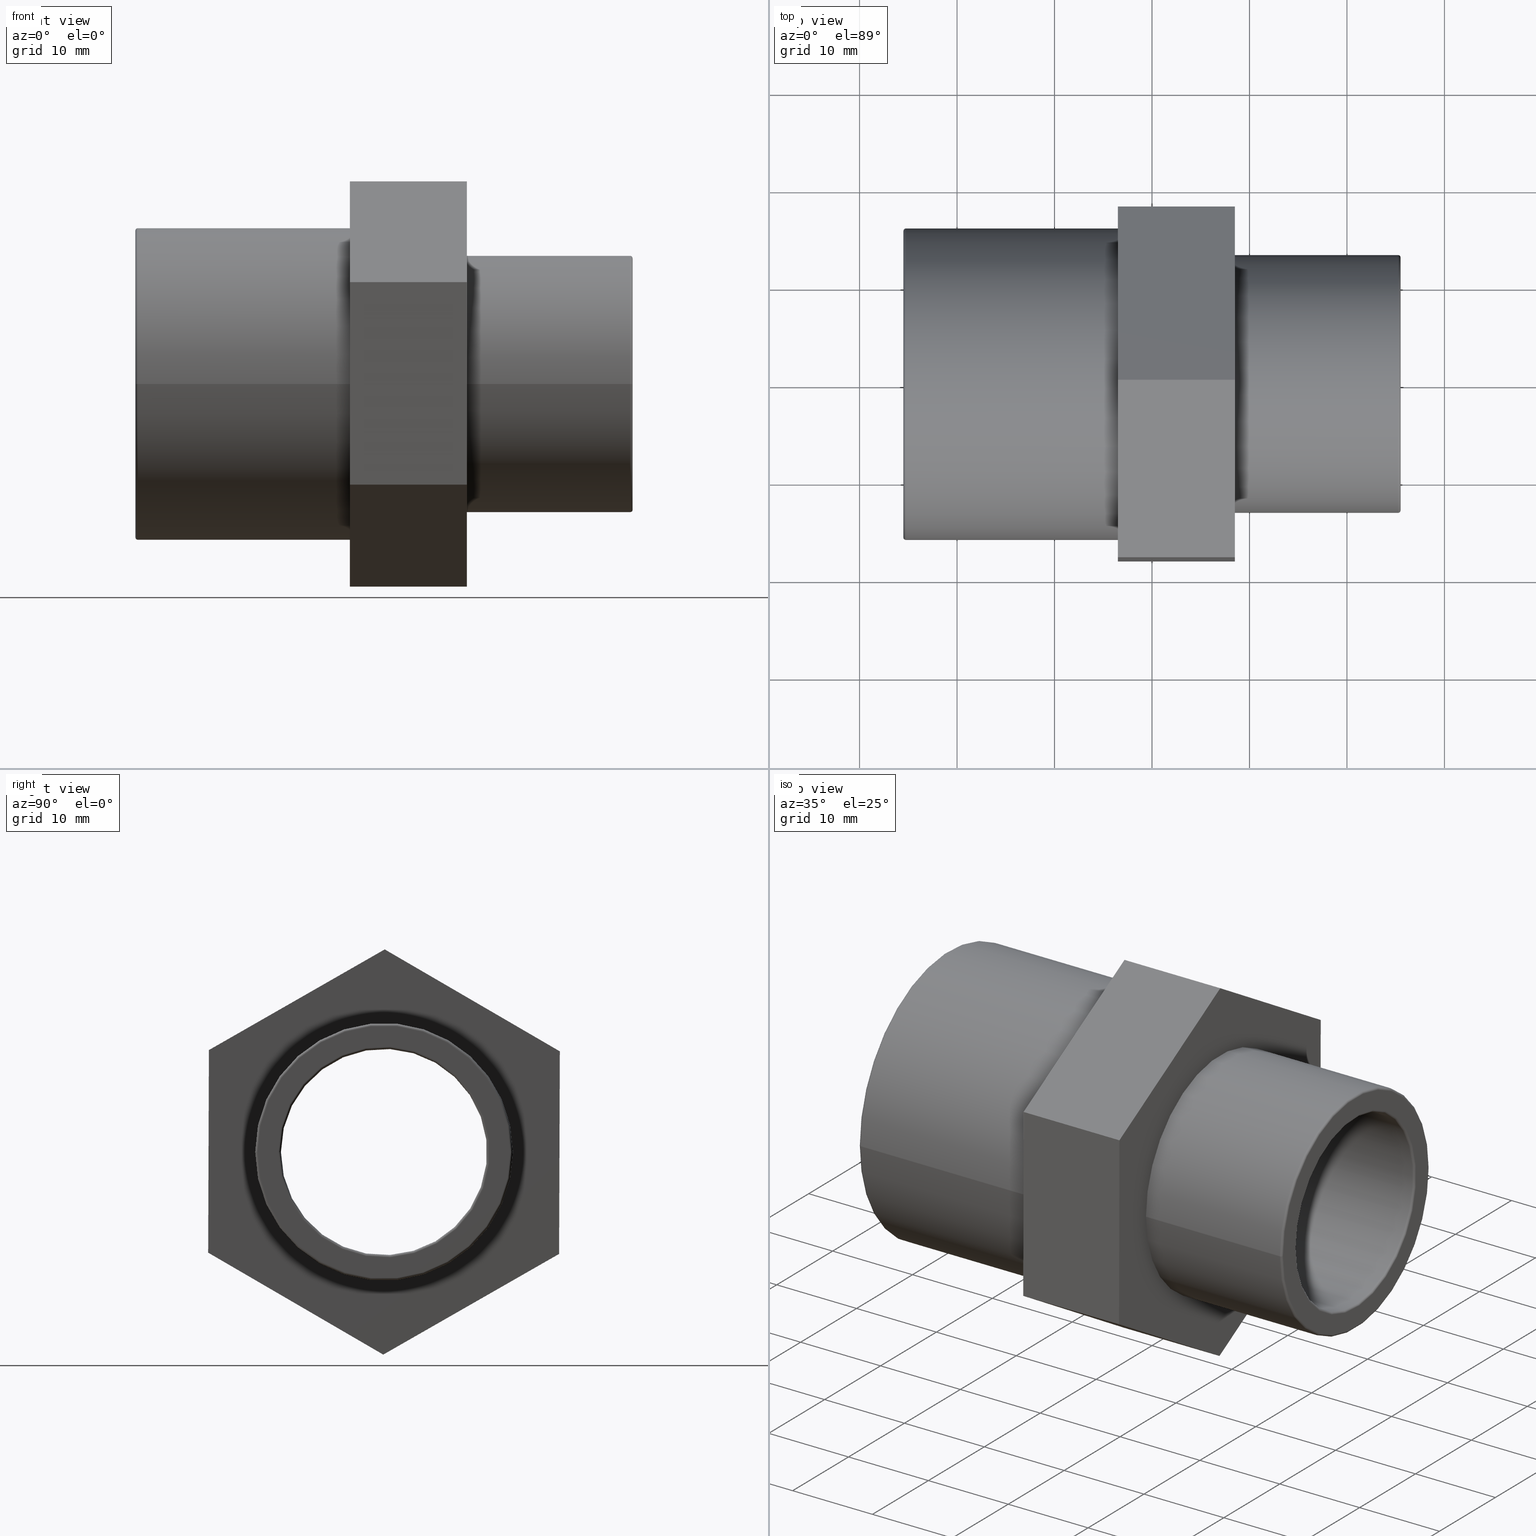
[diagram: canonical four-view strip — front | top / right | iso, engineering-drawing reading convention]
A machine part, canonical four-view strip (front | top / right | iso — engineering-drawing reading convention). The complete STEP part file that produces these views, byte-faithful:
ISO-10303-21;
HEADER;
/* Generated by software containing ST-Developer
 * from STEP Tools, Inc. (www.steptools.com) 
 */

FILE_DESCRIPTION(
/* description */ ('PLASSON SOCKET NIPPLE THR-CE 32(25)-3/4"'),
/* implementation_level */ '2;1');

FILE_NAME(
/* name */ 
'C:\\Dropbox\\KIMPROJECTS-Inventor\\99-16-3568-Processing\\PVC Catalog
 2017\\052102\\052102025007.ipt.stp',
/* time_stamp */ '2017-12-07T16:01:51+02:00',
/* author */ ('KIM'),
/* organization */ (''),
/* preprocessor_version */ 'ST-DEVELOPER v15.6',
/* originating_system */ 'Autodesk Inventor 2015',
/* authorisation */ '');

FILE_SCHEMA (('AUTOMOTIVE_DESIGN { 1 0 10303 214 3 1 1 }'));
ENDSEC;

DATA;
#10=MECHANICAL_DESIGN_GEOMETRIC_PRESENTATION_REPRESENTATION('',(#13),#511);
#11=SHAPE_REPRESENTATION_RELATIONSHIP('SRR','None',#520,#12);
#12=ADVANCED_BREP_SHAPE_REPRESENTATION($,(#14),#510);
#13=STYLED_ITEM('',(#529),#14);
#14=MANIFOLD_SOLID_BREP('Solid1',#301);
#15=CYLINDRICAL_SURFACE('',#314,10.5764);
#16=CYLINDRICAL_SURFACE('',#318,13.2205);
#17=CYLINDRICAL_SURFACE('',#325,12.5);
#18=CYLINDRICAL_SURFACE('',#329,16.);
#19=CYLINDRICAL_SURFACE('',#333,11.875);
#20=FACE_BOUND('',#81,.T.);
#21=FACE_BOUND('',#83,.T.);
#22=FACE_BOUND('',#85,.T.);
#23=FACE_BOUND('',#87,.T.);
#24=FACE_BOUND('',#89,.T.);
#25=FACE_BOUND('',#91,.T.);
#26=FACE_BOUND('',#93,.T.);
#27=FACE_BOUND('',#95,.T.);
#28=FACE_BOUND('',#97,.T.);
#29=FACE_BOUND('',#99,.T.);
#30=FACE_BOUND('',#101,.T.);
#31=FACE_BOUND('',#103,.T.);
#32=FACE_BOUND('',#105,.T.);
#33=FACE_BOUND('',#107,.T.);
#34=FACE_BOUND('',#109,.T.);
#35=CIRCLE('',#310,10.5764);
#36=CIRCLE('',#311,10.8264);
#37=CIRCLE('',#313,12.9705);
#38=CIRCLE('',#315,10.5764);
#39=CIRCLE('',#317,13.2205);
#40=CIRCLE('',#319,13.2205);
#41=CIRCLE('',#321,12.75);
#42=CIRCLE('',#322,12.5);
#43=CIRCLE('',#324,15.75);
#44=CIRCLE('',#326,12.5);
#45=CIRCLE('',#328,16.);
#46=CIRCLE('',#330,16.);
#47=CIRCLE('',#332,11.875);
#48=CIRCLE('',#334,11.875);
#49=TOROIDAL_SURFACE('',#309,10.8264,0.25);
#50=TOROIDAL_SURFACE('',#316,12.9705,0.25);
#51=TOROIDAL_SURFACE('',#320,12.75,0.25);
#52=TOROIDAL_SURFACE('',#327,15.75,0.25);
#53=FACE_OUTER_BOUND('',#74,.T.);
#54=FACE_OUTER_BOUND('',#75,.T.);
#55=FACE_OUTER_BOUND('',#76,.T.);
#56=FACE_OUTER_BOUND('',#77,.T.);
#57=FACE_OUTER_BOUND('',#78,.T.);
#58=FACE_OUTER_BOUND('',#79,.T.);
#59=FACE_OUTER_BOUND('',#80,.T.);
#60=FACE_OUTER_BOUND('',#82,.T.);
#61=FACE_OUTER_BOUND('',#84,.T.);
#62=FACE_OUTER_BOUND('',#86,.T.);
#63=FACE_OUTER_BOUND('',#88,.T.);
#64=FACE_OUTER_BOUND('',#90,.T.);
#65=FACE_OUTER_BOUND('',#92,.T.);
#66=FACE_OUTER_BOUND('',#94,.T.);
#67=FACE_OUTER_BOUND('',#96,.T.);
#68=FACE_OUTER_BOUND('',#98,.T.);
#69=FACE_OUTER_BOUND('',#100,.T.);
#70=FACE_OUTER_BOUND('',#102,.T.);
#71=FACE_OUTER_BOUND('',#104,.T.);
#72=FACE_OUTER_BOUND('',#106,.T.);
#73=FACE_OUTER_BOUND('',#108,.T.);
#74=EDGE_LOOP('',(#204,#205,#206,#207));
#75=EDGE_LOOP('',(#208,#209,#210,#211));
#76=EDGE_LOOP('',(#212,#213,#214,#215));
#77=EDGE_LOOP('',(#216,#217,#218,#219));
#78=EDGE_LOOP('',(#220,#221,#222,#223));
#79=EDGE_LOOP('',(#224,#225,#226,#227));
#80=EDGE_LOOP('',(#228));
#81=EDGE_LOOP('',(#229));
#82=EDGE_LOOP('',(#230));
#83=EDGE_LOOP('',(#231));
#84=EDGE_LOOP('',(#232));
#85=EDGE_LOOP('',(#233));
#86=EDGE_LOOP('',(#234));
#87=EDGE_LOOP('',(#235));
#88=EDGE_LOOP('',(#236));
#89=EDGE_LOOP('',(#237));
#90=EDGE_LOOP('',(#238));
#91=EDGE_LOOP('',(#239));
#92=EDGE_LOOP('',(#240));
#93=EDGE_LOOP('',(#241));
#94=EDGE_LOOP('',(#242));
#95=EDGE_LOOP('',(#243));
#96=EDGE_LOOP('',(#244));
#97=EDGE_LOOP('',(#245));
#98=EDGE_LOOP('',(#246));
#99=EDGE_LOOP('',(#247));
#100=EDGE_LOOP('',(#248));
#101=EDGE_LOOP('',(#249));
#102=EDGE_LOOP('',(#250));
#103=EDGE_LOOP('',(#251));
#104=EDGE_LOOP('',(#252));
#105=EDGE_LOOP('',(#253));
#106=EDGE_LOOP('',(#254,#255,#256,#257,#258,#259));
#107=EDGE_LOOP('',(#260));
#108=EDGE_LOOP('',(#261,#262,#263,#264,#265,#266));
#109=EDGE_LOOP('',(#267));
#110=LINE('',#432,#128);
#111=LINE('',#434,#129);
#112=LINE('',#436,#130);
#113=LINE('',#437,#131);
#114=LINE('',#440,#132);
#115=LINE('',#442,#133);
#116=LINE('',#443,#134);
#117=LINE('',#446,#135);
#118=LINE('',#448,#136);
#119=LINE('',#449,#137);
#120=LINE('',#453,#138);
#121=LINE('',#455,#139);
#122=LINE('',#457,#140);
#123=LINE('',#458,#141);
#124=LINE('',#460,#142);
#125=LINE('',#461,#143);
#126=LINE('',#463,#144);
#127=LINE('',#464,#145);
#128=VECTOR('',#342,20.7846096908266);
#129=VECTOR('',#343,12.);
#130=VECTOR('',#344,20.7846096908266);
#131=VECTOR('',#345,12.);
#132=VECTOR('',#348,20.7846096908266);
#133=VECTOR('',#349,12.);
#134=VECTOR('',#350,20.7846096908266);
#135=VECTOR('',#353,20.7846096908266);
#136=VECTOR('',#354,12.);
#137=VECTOR('',#355,20.7846096908266);
#138=VECTOR('',#358,20.7846096908266);
#139=VECTOR('',#359,12.);
#140=VECTOR('',#360,20.7846096908266);
#141=VECTOR('',#361,12.);
#142=VECTOR('',#364,20.7846096908266);
#143=VECTOR('',#365,20.7846096908266);
#144=VECTOR('',#368,20.7846096908265);
#145=VECTOR('',#369,20.7846096908265);
#146=VERTEX_POINT('',#430);
#147=VERTEX_POINT('',#431);
#148=VERTEX_POINT('',#433);
#149=VERTEX_POINT('',#435);
#150=VERTEX_POINT('',#439);
#151=VERTEX_POINT('',#441);
#152=VERTEX_POINT('',#445);
#153=VERTEX_POINT('',#447);
#154=VERTEX_POINT('',#451);
#155=VERTEX_POINT('',#452);
#156=VERTEX_POINT('',#454);
#157=VERTEX_POINT('',#456);
#158=VERTEX_POINT('',#466);
#159=VERTEX_POINT('',#468);
#160=VERTEX_POINT('',#471);
#161=VERTEX_POINT('',#474);
#162=VERTEX_POINT('',#477);
#163=VERTEX_POINT('',#480);
#164=VERTEX_POINT('',#483);
#165=VERTEX_POINT('',#485);
#166=VERTEX_POINT('',#488);
#167=VERTEX_POINT('',#491);
#168=VERTEX_POINT('',#494);
#169=VERTEX_POINT('',#497);
#170=VERTEX_POINT('',#500);
#171=VERTEX_POINT('',#503);
#172=EDGE_CURVE('',#146,#147,#110,.T.);
#173=EDGE_CURVE('',#148,#147,#111,.T.);
#174=EDGE_CURVE('',#148,#149,#112,.T.);
#175=EDGE_CURVE('',#149,#146,#113,.T.);
#176=EDGE_CURVE('',#147,#150,#114,.T.);
#177=EDGE_CURVE('',#151,#150,#115,.T.);
#178=EDGE_CURVE('',#151,#148,#116,.T.);
#179=EDGE_CURVE('',#150,#152,#117,.T.);
#180=EDGE_CURVE('',#153,#152,#118,.T.);
#181=EDGE_CURVE('',#153,#151,#119,.T.);
#182=EDGE_CURVE('',#154,#155,#120,.T.);
#183=EDGE_CURVE('',#156,#155,#121,.T.);
#184=EDGE_CURVE('',#156,#157,#122,.T.);
#185=EDGE_CURVE('',#157,#154,#123,.T.);
#186=EDGE_CURVE('',#155,#146,#124,.T.);
#187=EDGE_CURVE('',#149,#156,#125,.T.);
#188=EDGE_CURVE('',#152,#154,#126,.T.);
#189=EDGE_CURVE('',#157,#153,#127,.T.);
#190=EDGE_CURVE('',#158,#158,#35,.T.);
#191=EDGE_CURVE('',#159,#159,#36,.T.);
#192=EDGE_CURVE('',#160,#160,#37,.T.);
#193=EDGE_CURVE('',#161,#161,#38,.T.);
#194=EDGE_CURVE('',#162,#162,#39,.T.);
#195=EDGE_CURVE('',#163,#163,#40,.T.);
#196=EDGE_CURVE('',#164,#164,#41,.T.);
#197=EDGE_CURVE('',#165,#165,#42,.T.);
#198=EDGE_CURVE('',#166,#166,#43,.T.);
#199=EDGE_CURVE('',#167,#167,#44,.T.);
#200=EDGE_CURVE('',#168,#168,#45,.T.);
#201=EDGE_CURVE('',#169,#169,#46,.T.);
#202=EDGE_CURVE('',#170,#170,#47,.T.);
#203=EDGE_CURVE('',#171,#171,#48,.T.);
#204=ORIENTED_EDGE('',*,*,#172,.T.);
#205=ORIENTED_EDGE('',*,*,#173,.F.);
#206=ORIENTED_EDGE('',*,*,#174,.T.);
#207=ORIENTED_EDGE('',*,*,#175,.T.);
#208=ORIENTED_EDGE('',*,*,#176,.T.);
#209=ORIENTED_EDGE('',*,*,#177,.F.);
#210=ORIENTED_EDGE('',*,*,#178,.T.);
#211=ORIENTED_EDGE('',*,*,#173,.T.);
#212=ORIENTED_EDGE('',*,*,#179,.T.);
#213=ORIENTED_EDGE('',*,*,#180,.F.);
#214=ORIENTED_EDGE('',*,*,#181,.T.);
#215=ORIENTED_EDGE('',*,*,#177,.T.);
#216=ORIENTED_EDGE('',*,*,#182,.T.);
#217=ORIENTED_EDGE('',*,*,#183,.F.);
#218=ORIENTED_EDGE('',*,*,#184,.T.);
#219=ORIENTED_EDGE('',*,*,#185,.T.);
#220=ORIENTED_EDGE('',*,*,#186,.T.);
#221=ORIENTED_EDGE('',*,*,#175,.F.);
#222=ORIENTED_EDGE('',*,*,#187,.T.);
#223=ORIENTED_EDGE('',*,*,#183,.T.);
#224=ORIENTED_EDGE('',*,*,#188,.T.);
#225=ORIENTED_EDGE('',*,*,#185,.F.);
#226=ORIENTED_EDGE('',*,*,#189,.T.);
#227=ORIENTED_EDGE('',*,*,#180,.T.);
#228=ORIENTED_EDGE('',*,*,#190,.T.);
#229=ORIENTED_EDGE('',*,*,#191,.T.);
#230=ORIENTED_EDGE('',*,*,#192,.F.);
#231=ORIENTED_EDGE('',*,*,#191,.F.);
#232=ORIENTED_EDGE('',*,*,#193,.T.);
#233=ORIENTED_EDGE('',*,*,#190,.F.);
#234=ORIENTED_EDGE('',*,*,#192,.T.);
#235=ORIENTED_EDGE('',*,*,#194,.T.);
#236=ORIENTED_EDGE('',*,*,#195,.F.);
#237=ORIENTED_EDGE('',*,*,#194,.F.);
#238=ORIENTED_EDGE('',*,*,#196,.T.);
#239=ORIENTED_EDGE('',*,*,#197,.T.);
#240=ORIENTED_EDGE('',*,*,#198,.F.);
#241=ORIENTED_EDGE('',*,*,#196,.F.);
#242=ORIENTED_EDGE('',*,*,#199,.F.);
#243=ORIENTED_EDGE('',*,*,#197,.F.);
#244=ORIENTED_EDGE('',*,*,#200,.T.);
#245=ORIENTED_EDGE('',*,*,#198,.T.);
#246=ORIENTED_EDGE('',*,*,#201,.T.);
#247=ORIENTED_EDGE('',*,*,#200,.F.);
#248=ORIENTED_EDGE('',*,*,#199,.T.);
#249=ORIENTED_EDGE('',*,*,#202,.F.);
#250=ORIENTED_EDGE('',*,*,#203,.F.);
#251=ORIENTED_EDGE('',*,*,#202,.T.);
#252=ORIENTED_EDGE('',*,*,#203,.T.);
#253=ORIENTED_EDGE('',*,*,#193,.F.);
#254=ORIENTED_EDGE('',*,*,#186,.F.);
#255=ORIENTED_EDGE('',*,*,#182,.F.);
#256=ORIENTED_EDGE('',*,*,#188,.F.);
#257=ORIENTED_EDGE('',*,*,#179,.F.);
#258=ORIENTED_EDGE('',*,*,#176,.F.);
#259=ORIENTED_EDGE('',*,*,#172,.F.);
#260=ORIENTED_EDGE('',*,*,#195,.T.);
#261=ORIENTED_EDGE('',*,*,#174,.F.);
#262=ORIENTED_EDGE('',*,*,#178,.F.);
#263=ORIENTED_EDGE('',*,*,#181,.F.);
#264=ORIENTED_EDGE('',*,*,#189,.F.);
#265=ORIENTED_EDGE('',*,*,#184,.F.);
#266=ORIENTED_EDGE('',*,*,#187,.F.);
#267=ORIENTED_EDGE('',*,*,#201,.F.);
#268=PLANE('',#303);
#269=PLANE('',#304);
#270=PLANE('',#305);
#271=PLANE('',#306);
#272=PLANE('',#307);
#273=PLANE('',#308);
#274=PLANE('',#312);
#275=PLANE('',#323);
#276=PLANE('',#331);
#277=PLANE('',#335);
#278=PLANE('',#336);
#279=PLANE('',#337);
#280=ADVANCED_FACE('',(#53),#268,.T.);
#281=ADVANCED_FACE('',(#54),#269,.T.);
#282=ADVANCED_FACE('',(#55),#270,.T.);
#283=ADVANCED_FACE('',(#56),#271,.T.);
#284=ADVANCED_FACE('',(#57),#272,.T.);
#285=ADVANCED_FACE('',(#58),#273,.T.);
#286=ADVANCED_FACE('',(#59,#20),#49,.T.);
#287=ADVANCED_FACE('',(#60,#21),#274,.T.);
#288=ADVANCED_FACE('',(#61,#22),#15,.F.);
#289=ADVANCED_FACE('',(#62,#23),#50,.T.);
#290=ADVANCED_FACE('',(#63,#24),#16,.T.);
#291=ADVANCED_FACE('',(#64,#25),#51,.T.);
#292=ADVANCED_FACE('',(#65,#26),#275,.T.);
#293=ADVANCED_FACE('',(#66,#27),#17,.F.);
#294=ADVANCED_FACE('',(#67,#28),#52,.T.);
#295=ADVANCED_FACE('',(#68,#29),#18,.T.);
#296=ADVANCED_FACE('',(#69,#30),#276,.T.);
#297=ADVANCED_FACE('',(#70,#31),#19,.F.);
#298=ADVANCED_FACE('',(#71,#32),#277,.T.);
#299=ADVANCED_FACE('',(#72,#33),#278,.T.);
#300=ADVANCED_FACE('',(#73,#34),#279,.T.);
#301=CLOSED_SHELL('',(#280,#281,#282,#283,#284,#285,#286,#287,#288,#289,
#290,#291,#292,#293,#294,#295,#296,#297,#298,#299,#300));
#302=AXIS2_PLACEMENT_3D('placement',#428,#338,#339);
#303=AXIS2_PLACEMENT_3D('',#429,#340,#341);
#304=AXIS2_PLACEMENT_3D('',#438,#346,#347);
#305=AXIS2_PLACEMENT_3D('',#444,#351,#352);
#306=AXIS2_PLACEMENT_3D('',#450,#356,#357);
#307=AXIS2_PLACEMENT_3D('',#459,#362,#363);
#308=AXIS2_PLACEMENT_3D('',#462,#366,#367);
#309=AXIS2_PLACEMENT_3D('',#465,#370,#371);
#310=AXIS2_PLACEMENT_3D('',#467,#372,#373);
#311=AXIS2_PLACEMENT_3D('',#469,#374,#375);
#312=AXIS2_PLACEMENT_3D('',#470,#376,#377);
#313=AXIS2_PLACEMENT_3D('',#472,#378,#379);
#314=AXIS2_PLACEMENT_3D('',#473,#380,#381);
#315=AXIS2_PLACEMENT_3D('',#475,#382,#383);
#316=AXIS2_PLACEMENT_3D('',#476,#384,#385);
#317=AXIS2_PLACEMENT_3D('',#478,#386,#387);
#318=AXIS2_PLACEMENT_3D('',#479,#388,#389);
#319=AXIS2_PLACEMENT_3D('',#481,#390,#391);
#320=AXIS2_PLACEMENT_3D('',#482,#392,#393);
#321=AXIS2_PLACEMENT_3D('',#484,#394,#395);
#322=AXIS2_PLACEMENT_3D('',#486,#396,#397);
#323=AXIS2_PLACEMENT_3D('',#487,#398,#399);
#324=AXIS2_PLACEMENT_3D('',#489,#400,#401);
#325=AXIS2_PLACEMENT_3D('',#490,#402,#403);
#326=AXIS2_PLACEMENT_3D('',#492,#404,#405);
#327=AXIS2_PLACEMENT_3D('',#493,#406,#407);
#328=AXIS2_PLACEMENT_3D('',#495,#408,#409);
#329=AXIS2_PLACEMENT_3D('',#496,#410,#411);
#330=AXIS2_PLACEMENT_3D('',#498,#412,#413);
#331=AXIS2_PLACEMENT_3D('',#499,#414,#415);
#332=AXIS2_PLACEMENT_3D('',#501,#416,#417);
#333=AXIS2_PLACEMENT_3D('',#502,#418,#419);
#334=AXIS2_PLACEMENT_3D('',#504,#420,#421);
#335=AXIS2_PLACEMENT_3D('',#505,#422,#423);
#336=AXIS2_PLACEMENT_3D('',#506,#424,#425);
#337=AXIS2_PLACEMENT_3D('',#507,#426,#427);
#338=DIRECTION('axis',(0.,0.,1.));
#339=DIRECTION('refdir',(1.,0.,0.));
#340=DIRECTION('center_axis',(6.16786529508788E-16,-0.999993450406666,0.0036192739286133));
#341=DIRECTION('ref_axis',(0.,-0.00361927392861325,-0.999993450406666));
#342=DIRECTION('',(-2.43778272755256E-18,0.0036192739286133,0.999993450406666));
#343=DIRECTION('',(1.,6.16790569236188E-16,0.));
#344=DIRECTION('',(2.43778272755256E-18,-0.0036192739286133,-0.999993450406666));
#345=DIRECTION('',(1.,6.16790569236188E-16,0.));
#346=DIRECTION('center_axis',(3.06460006777583E-16,-0.496862342037901,0.867829368634533));
#347=DIRECTION('ref_axis',(5.77315972805081E-16,-0.867829368634533,-0.496862342037901));
#348=DIRECTION('',(-5.84531452177392E-16,0.867829368634533,0.496862342037901));
#349=DIRECTION('',(1.,6.16790569236188E-16,0.));
#350=DIRECTION('',(5.84531452177392E-16,-0.867829368634533,-0.496862342037901));
#351=DIRECTION('center_axis',(-3.10326522731207E-16,0.503131108368768,0.86421009470592));
#352=DIRECTION('ref_axis',(5.77315972805081E-16,-0.86421009470592,0.503131108368768));
#353=DIRECTION('',(-5.8209366944984E-16,0.86421009470592,-0.503131108368768));
#354=DIRECTION('',(1.,6.16790569236188E-16,0.));
#355=DIRECTION('',(5.8209366944984E-16,-0.86421009470592,0.503131108368768));
#356=DIRECTION('center_axis',(-3.06460006777583E-16,0.496862342037901,-0.867829368634533));
#357=DIRECTION('ref_axis',(-5.77315972805081E-16,0.867829368634533,0.496862342037901));
#358=DIRECTION('',(5.84531452177392E-16,-0.867829368634533,-0.496862342037901));
#359=DIRECTION('',(1.,6.16790569236188E-16,0.));
#360=DIRECTION('',(-5.84531452177392E-16,0.867829368634533,0.496862342037901));
#361=DIRECTION('',(1.,6.16790569236188E-16,0.));
#362=DIRECTION('center_axis',(3.10326522731205E-16,-0.503131108368766,-0.864210094705921));
#363=DIRECTION('ref_axis',(-5.77315972805081E-16,0.864210094705921,-0.503131108368766));
#364=DIRECTION('',(5.8209366944984E-16,-0.864210094705921,0.503131108368766));
#365=DIRECTION('',(-5.8209366944984E-16,0.864210094705921,-0.503131108368766));
#366=DIRECTION('center_axis',(-6.16786529508788E-16,0.999993450406666,-0.00361927392861245));
#367=DIRECTION('ref_axis',(0.,0.00361927392861254,0.999993450406666));
#368=DIRECTION('',(2.43778272755199E-18,-0.00361927392861245,-0.999993450406666));
#369=DIRECTION('',(-2.43778272755199E-18,0.00361927392861245,0.999993450406666));
#370=DIRECTION('center_axis',(-1.,-6.73555739531044E-16,0.));
#371=DIRECTION('ref_axis',(0.,0.,1.));
#372=DIRECTION('center_axis',(-1.,-6.73555739531044E-16,0.));
#373=DIRECTION('ref_axis',(-6.72475157095505E-16,1.,6.12323399573677E-17));
#374=DIRECTION('center_axis',(1.,6.73555739531044E-16,0.));
#375=DIRECTION('ref_axis',(-6.73555739531044E-16,1.,6.12323399573677E-17));
#376=DIRECTION('center_axis',(1.,6.73555739531044E-16,0.));
#377=DIRECTION('ref_axis',(0.,0.,-1.));
#378=DIRECTION('center_axis',(-1.,-6.73555739531044E-16,0.));
#379=DIRECTION('ref_axis',(-6.73555739531044E-16,1.,6.12323399573677E-17));
#380=DIRECTION('center_axis',(-1.,-6.73555739531044E-16,0.));
#381=DIRECTION('ref_axis',(7.105427357601E-16,-1.,0.));
#382=DIRECTION('center_axis',(-1.,-6.73555739531044E-16,0.));
#383=DIRECTION('ref_axis',(0.,0.,1.));
#384=DIRECTION('center_axis',(-1.,-6.73555739531044E-16,0.));
#385=DIRECTION('ref_axis',(0.,0.,1.));
#386=DIRECTION('center_axis',(1.,6.73555739531044E-16,0.));
#387=DIRECTION('ref_axis',(-6.74443377067492E-16,1.,6.12323399573677E-17));
#388=DIRECTION('center_axis',(-1.,-6.73555739531044E-16,0.));
#389=DIRECTION('ref_axis',(7.105427357601E-16,-1.,0.));
#390=DIRECTION('center_axis',(-1.,-6.73555739531044E-16,0.));
#391=DIRECTION('ref_axis',(0.,0.,1.));
#392=DIRECTION('center_axis',(-1.,-6.73555739531044E-16,0.));
#393=DIRECTION('ref_axis',(0.,0.,1.));
#394=DIRECTION('center_axis',(-1.,-6.73555739531044E-16,0.));
#395=DIRECTION('ref_axis',(-6.73555739531044E-16,1.,6.12323399573677E-17));
#396=DIRECTION('center_axis',(1.,6.73555739531044E-16,0.));
#397=DIRECTION('ref_axis',(-6.74460487459783E-16,1.,6.12323399573677E-17));
#398=DIRECTION('center_axis',(-1.,-6.73555739531044E-16,0.));
#399=DIRECTION('ref_axis',(0.,0.,1.));
#400=DIRECTION('center_axis',(1.,6.73555739531044E-16,0.));
#401=DIRECTION('ref_axis',(-6.73555739531044E-16,1.,6.12323399573677E-17));
#402=DIRECTION('center_axis',(-1.,-6.73555739531044E-16,0.));
#403=DIRECTION('ref_axis',(7.105427357601E-16,-1.,0.));
#404=DIRECTION('center_axis',(-1.,-6.73555739531044E-16,0.));
#405=DIRECTION('ref_axis',(0.,0.,1.));
#406=DIRECTION('center_axis',(-1.,-6.73555739531044E-16,0.));
#407=DIRECTION('ref_axis',(0.,0.,1.));
#408=DIRECTION('center_axis',(-1.,-6.73555739531044E-16,0.));
#409=DIRECTION('ref_axis',(-6.74373751285984E-16,1.,6.12323399573677E-17));
#410=DIRECTION('center_axis',(-1.,-6.73555739531044E-16,0.));
#411=DIRECTION('ref_axis',(7.105427357601E-16,-1.,0.));
#412=DIRECTION('center_axis',(-1.,-6.73555739531044E-16,0.));
#413=DIRECTION('ref_axis',(0.,0.,1.));
#414=DIRECTION('center_axis',(-1.,-6.73555739531044E-16,0.));
#415=DIRECTION('ref_axis',(0.,0.,1.));
#416=DIRECTION('center_axis',(-1.,-6.73555739531044E-16,0.));
#417=DIRECTION('ref_axis',(0.,0.,1.));
#418=DIRECTION('center_axis',(-1.,-6.73555739531044E-16,0.));
#419=DIRECTION('ref_axis',(7.105427357601E-16,-1.,0.));
#420=DIRECTION('center_axis',(-1.,-6.73555739531044E-16,0.));
#421=DIRECTION('ref_axis',(0.,0.,1.));
#422=DIRECTION('center_axis',(-1.,-6.73555739531044E-16,0.));
#423=DIRECTION('ref_axis',(0.,0.,1.));
#424=DIRECTION('center_axis',(1.,6.73555739531044E-16,0.));
#425=DIRECTION('ref_axis',(0.,0.,-1.));
#426=DIRECTION('center_axis',(-1.,-6.73555739531044E-16,0.));
#427=DIRECTION('ref_axis',(0.,0.,1.));
#428=CARTESIAN_POINT('',(0.,0.,0.));
#429=CARTESIAN_POINT('Origin',(-3.49999999999999,-17.9622695093348,10.4573837107578));
#430=CARTESIAN_POINT('',(8.50000000000002,-18.0374947053052,-10.3270898493277));
#431=CARTESIAN_POINT('',(8.50000000000002,-17.9622695093348,10.4573837107578));
#432=CARTESIAN_POINT('',(8.50000000000002,-17.9810758083274,5.26126532073641));
#433=CARTESIAN_POINT('',(-3.49999999999999,-17.9622695093348,10.4573837107578));
#434=CARTESIAN_POINT('',(-3.49999999999999,-17.9622695093348,10.4573837107578));
#435=CARTESIAN_POINT('',(-3.49999999999999,-18.0374947053052,-10.3270898493277));
#436=CARTESIAN_POINT('',(-3.49999999999999,-17.9622695093348,10.4573837107578));
#437=CARTESIAN_POINT('',(-3.49999999999999,-18.0374947053052,-10.3270898493277));
#438=CARTESIAN_POINT('Origin',(-3.50000000000001,0.0752251959704257,20.7844735600855));
#439=CARTESIAN_POINT('',(8.50000000000001,0.0752251959704331,20.7844735600855));
#440=CARTESIAN_POINT('',(8.50000000000002,-4.43414848035589,18.2027010977536));
#441=CARTESIAN_POINT('',(-3.50000000000001,0.0752251959704257,20.7844735600855));
#442=CARTESIAN_POINT('',(-3.50000000000001,0.0752251959704257,20.7844735600855));
#443=CARTESIAN_POINT('',(-3.50000000000001,0.0752251959704257,20.7844735600855));
#444=CARTESIAN_POINT('Origin',(-3.50000000000002,18.0374947053052,10.3270898493277));
#445=CARTESIAN_POINT('',(8.5,18.0374947053052,10.3270898493277));
#446=CARTESIAN_POINT('',(8.5,13.5469273279715,12.9414357770172));
#447=CARTESIAN_POINT('',(-3.50000000000002,18.0374947053052,10.3270898493277));
#448=CARTESIAN_POINT('',(-3.50000000000002,18.0374947053052,10.3270898493277));
#449=CARTESIAN_POINT('',(-3.50000000000002,18.0374947053052,10.3270898493277));
#450=CARTESIAN_POINT('Origin',(-3.50000000000001,-0.0752251959703761,-20.7844735600855));
#451=CARTESIAN_POINT('',(8.5,17.9622695093348,-10.4573837107577));
#452=CARTESIAN_POINT('',(8.50000000000001,-0.0752251959703687,-20.7844735600855));
#453=CARTESIAN_POINT('',(8.50000000000001,4.43414848035594,-18.2027010977535));
#454=CARTESIAN_POINT('',(-3.50000000000001,-0.0752251959703761,-20.7844735600855));
#455=CARTESIAN_POINT('',(-3.50000000000001,-0.0752251959703761,-20.7844735600855));
#456=CARTESIAN_POINT('',(-3.50000000000002,17.9622695093348,-10.4573837107577));
#457=CARTESIAN_POINT('',(-3.50000000000001,-0.0752251959703761,-20.7844735600855));
#458=CARTESIAN_POINT('',(-3.50000000000002,17.9622695093348,-10.4573837107577));
#459=CARTESIAN_POINT('Origin',(-3.49999999999999,-18.0374947053052,-10.3270898493277));
#460=CARTESIAN_POINT('',(8.50000000000002,-13.5469273279715,-12.9414357770172));
#461=CARTESIAN_POINT('',(-3.49999999999999,-18.0374947053052,-10.3270898493277));
#462=CARTESIAN_POINT('Origin',(-3.50000000000002,17.99988210732,-0.0651469307150099));
#463=CARTESIAN_POINT('',(8.5,17.99988210732,-0.0651469307150093));
#464=CARTESIAN_POINT('',(-3.50000000000002,17.9622695093348,-10.4573837107577));
#465=CARTESIAN_POINT('Origin',(25.25,2.16915564298975E-14,0.));
#466=CARTESIAN_POINT('',(25.25,-10.5764,6.47617720325104E-16));
#467=CARTESIAN_POINT('Origin',(25.25,2.16915564298975E-14,0.));
#468=CARTESIAN_POINT('',(25.5,-10.8264,-1.98877741594334E-15));
#469=CARTESIAN_POINT('Origin',(25.5,2.18599453647803E-14,0.));
#470=CARTESIAN_POINT('Origin',(25.5,-13.2205,0.));
#471=CARTESIAN_POINT('',(25.5,-12.9705,7.94214065417038E-16));
#472=CARTESIAN_POINT('Origin',(25.5,2.18599453647803E-14,0.));
#473=CARTESIAN_POINT('Origin',(15.3,1.49896768215636E-14,0.));
#474=CARTESIAN_POINT('',(5.10000000000002,-10.5764,0.));
#475=CARTESIAN_POINT('Origin',(5.10000000000001,8.11940827834696E-15,0.));
#476=CARTESIAN_POINT('Origin',(25.25,2.16915564298975E-14,0.));
#477=CARTESIAN_POINT('',(25.25,-13.2205,-2.42856645121914E-15));
#478=CARTESIAN_POINT('Origin',(25.25,2.16915564298975E-14,0.));
#479=CARTESIAN_POINT('Origin',(17.,1.61347215787664E-14,0.));
#480=CARTESIAN_POINT('',(8.50000000000002,-13.2205,0.));
#481=CARTESIAN_POINT('Origin',(8.50000000000002,1.04094977927525E-14,0.));
#482=CARTESIAN_POINT('Origin',(-25.25,-1.23230084164202E-14,0.));
#483=CARTESIAN_POINT('',(-25.5,-12.75,7.80712334456437E-16));
#484=CARTESIAN_POINT('Origin',(-25.5,-1.2491397351303E-14,0.));
#485=CARTESIAN_POINT('',(-25.25,-12.5,-2.29621274840129E-15));
#486=CARTESIAN_POINT('Origin',(-25.25,-1.23230084164202E-14,0.));
#487=CARTESIAN_POINT('Origin',(-25.5,-12.5,0.));
#488=CARTESIAN_POINT('',(-25.5,-15.75,-2.89322806298562E-15));
#489=CARTESIAN_POINT('Origin',(-25.5,-1.2491397351303E-14,0.));
#490=CARTESIAN_POINT('Origin',(-16.,-6.09261782575808E-15,0.));
#491=CARTESIAN_POINT('',(-6.5,-12.5,0.));
#492=CARTESIAN_POINT('Origin',(-6.50000000000001,3.06161699786833E-16,0.));
#493=CARTESIAN_POINT('Origin',(-25.25,-1.23230084164202E-14,0.));
#494=CARTESIAN_POINT('',(-25.25,-16.,9.79717439317883E-16));
#495=CARTESIAN_POINT('Origin',(-25.25,-1.23230084164202E-14,0.));
#496=CARTESIAN_POINT('Origin',(-14.5,-5.08228421646152E-15,0.));
#497=CARTESIAN_POINT('',(-3.5,-16.,0.));
#498=CARTESIAN_POINT('Origin',(-3.50000000000001,2.32682891837996E-15,0.));
#499=CARTESIAN_POINT('Origin',(-6.5,-11.875,0.));
#500=CARTESIAN_POINT('',(-6.5,-11.875,0.));
#501=CARTESIAN_POINT('Origin',(-6.50000000000001,3.06161699786833E-16,0.));
#502=CARTESIAN_POINT('Origin',(-0.699999999999996,4.21278498906689E-15,
0.));
#503=CARTESIAN_POINT('',(5.10000000000002,-11.875,0.));
#504=CARTESIAN_POINT('Origin',(5.10000000000001,8.11940827834696E-15,0.));
#505=CARTESIAN_POINT('Origin',(5.10000000000002,-10.5764,0.));
#506=CARTESIAN_POINT('Origin',(8.50000000000002,-18.,0.));
#507=CARTESIAN_POINT('Origin',(-3.5,-16.,0.));
#508=UNCERTAINTY_MEASURE_WITH_UNIT(LENGTH_MEASURE(0.01),#512,
'DISTANCE_ACCURACY_VALUE',
'Maximum model space distance between geometric entities at asserted c
onnectivities');
#509=UNCERTAINTY_MEASURE_WITH_UNIT(LENGTH_MEASURE(1.E-6),#512,
'DISTANCE_ACCURACY_VALUE',
'Maximum model space distance between geometric entities at asserted c
onnectivities');
#510=(
GEOMETRIC_REPRESENTATION_CONTEXT(3)
GLOBAL_UNCERTAINTY_ASSIGNED_CONTEXT((#508))
GLOBAL_UNIT_ASSIGNED_CONTEXT((#512,#515,#513))
REPRESENTATION_CONTEXT('','3D')
);
#511=(
GEOMETRIC_REPRESENTATION_CONTEXT(3)
GLOBAL_UNCERTAINTY_ASSIGNED_CONTEXT((#509))
GLOBAL_UNIT_ASSIGNED_CONTEXT((#512,#515,#513))
REPRESENTATION_CONTEXT('','3D')
);
#512=(
LENGTH_UNIT()
NAMED_UNIT(*)
SI_UNIT(.MILLI.,.METRE.)
);
#513=(
NAMED_UNIT(*)
SI_UNIT($,.STERADIAN.)
SOLID_ANGLE_UNIT()
);
#514=DIMENSIONAL_EXPONENTS(0.,0.,0.,0.,0.,0.,0.);
#515=(
CONVERSION_BASED_UNIT('degree',#517)
NAMED_UNIT(#514)
PLANE_ANGLE_UNIT()
);
#516=(
NAMED_UNIT(*)
PLANE_ANGLE_UNIT()
SI_UNIT($,.RADIAN.)
);
#517=PLANE_ANGLE_MEASURE_WITH_UNIT(PLANE_ANGLE_MEASURE(0.01745329252),#516);
#518=SHAPE_DEFINITION_REPRESENTATION(#519,#520);
#519=PRODUCT_DEFINITION_SHAPE('',$,#522);
#520=SHAPE_REPRESENTATION('',(#302),#510);
#521=PRODUCT_DEFINITION_CONTEXT('part definition',#526,'design');
#522=PRODUCT_DEFINITION('052102025007','052102025007',#523,#521);
#523=PRODUCT_DEFINITION_FORMATION('',$,#528);
#524=PRODUCT_RELATED_PRODUCT_CATEGORY('052102025007','052102025007',(#528));
#525=APPLICATION_PROTOCOL_DEFINITION('international standard',
'automotive_design',2009,#526);
#526=APPLICATION_CONTEXT(
'Core Data for Automotive Mechanical Design Process');
#527=PRODUCT_CONTEXT('part definition',#526,'mechanical');
#528=PRODUCT('052102025007','052102025007',$,(#527));
#529=PRESENTATION_STYLE_ASSIGNMENT((#530));
#530=SURFACE_STYLE_USAGE(.BOTH.,#531);
#531=SURFACE_SIDE_STYLE($,(#532));
#532=SURFACE_STYLE_FILL_AREA(#533);
#533=FILL_AREA_STYLE($,(#534));
#534=FILL_AREA_STYLE_COLOUR($,#535);
#535=COLOUR_RGB('',0.749019607843137,0.749019607843137,0.749019607843137);
ENDSEC;
END-ISO-10303-21;
